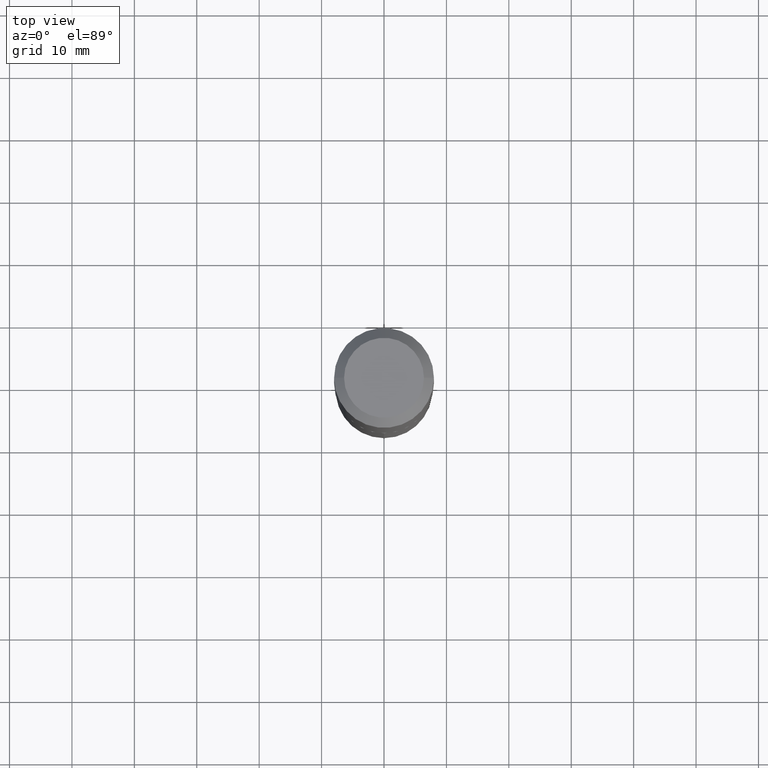
[diagram: clean part render]
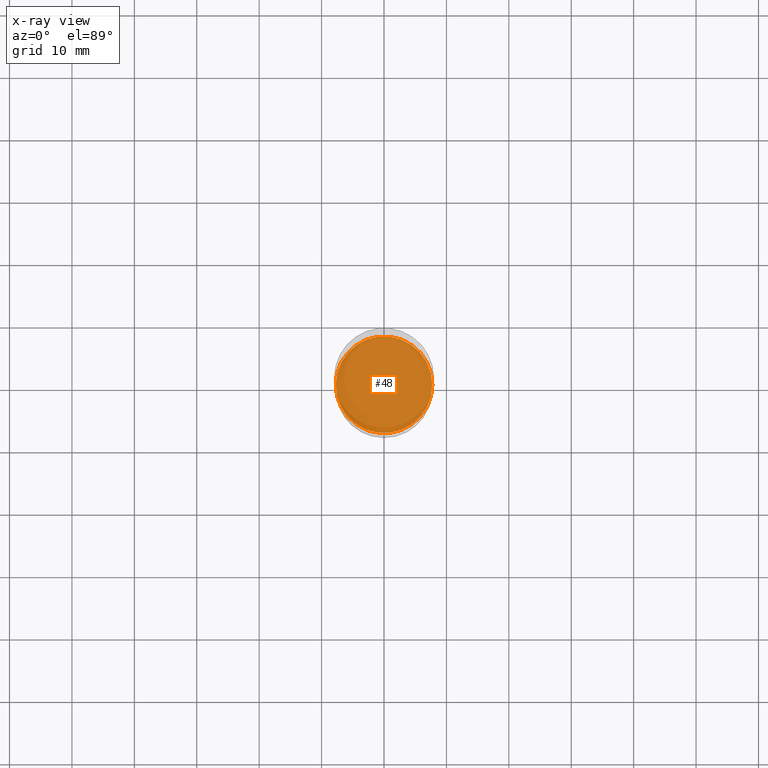
[diagram: x-ray — body ghosted, one internal face saturated and labeled with its STEP entity id]
A machine part, top view, then the same camera in x-ray: the body is ghosted and one INTERNAL B-rep face — a face not visible from any outside direction — is saturated and labeled: STEP entity #48.
In plain terms, the highlighted planar face has unit normal (-0, 0, 1).
Its self-contained STEP definition (entity closure, byte-faithful):
#10 = EDGE_CURVE ( 'NONE', #485, #196, #161, .T. ) ;
#48 = ADVANCED_FACE ( 'NONE', ( #280 ), #103, .F. ) ;
#61 = DIRECTION ( 'NONE',  ( -2.445468806185136597E-29, 3.491481338843145583E-15, 1.000000000000000000 ) ) ;
#66 = DIRECTION ( 'NONE',  ( 1.000000000000000000, -6.982962677686269866E-15, 0.000000000000000000 ) ) ;
#89 = ORIENTED_EDGE ( 'NONE', *, *, #270, .F. ) ;
#103 = PLANE ( 'NONE',  #169 ) ;
#121 = ORIENTED_EDGE ( 'NONE', *, *, #10, .F. ) ;
#135 = CARTESIAN_POINT ( 'NONE',  ( 6.306130410509609656E-29, -9.003482928474816704E-15, -2.578699999999999548 ) ) ;
#161 = CIRCLE ( 'NONE', #297, 0.3045999999999999819 ) ;
#169 = AXIS2_PLACEMENT_3D ( 'NONE', #183, #186, #356 ) ;
#183 = CARTESIAN_POINT ( 'NONE',  ( 6.306130410509609656E-29, -9.003482928474816704E-15, -2.578699999999999548 ) ) ;
#186 = DIRECTION ( 'NONE',  ( -2.438088387897960049E-29, 3.491481338843145188E-15, 1.000000000000000000 ) ) ;
#196 = VERTEX_POINT ( 'NONE', #382 ) ;
#200 = CIRCLE ( 'NONE', #432, 0.3045999999999999819 ) ;
#254 = CARTESIAN_POINT ( 'NONE',  ( -0.3045999999999999819, -6.836520528175441255E-15, -2.578699999999999548 ) ) ;
#270 = EDGE_CURVE ( 'NONE', #196, #485, #200, .T. ) ;
#280 = FACE_OUTER_BOUND ( 'NONE', #448, .T. ) ;
#297 = AXIS2_PLACEMENT_3D ( 'NONE', #403, #433, #66 ) ;
#355 = DIRECTION ( 'NONE',  ( 1.000000000000000000, -6.982962677686269866E-15, 0.000000000000000000 ) ) ;
#356 = DIRECTION ( 'NONE',  ( 1.000000000000000000, -6.982962677686265922E-15, 4.876176775795935793E-29 ) ) ;
#382 = CARTESIAN_POINT ( 'NONE',  ( 0.3045999999999999819, -1.113049336009805554E-14, -2.578699999999999548 ) ) ;
#403 = CARTESIAN_POINT ( 'NONE',  ( 6.306130410509609656E-29, -9.003482928474816704E-15, -2.578699999999999548 ) ) ;
#432 = AXIS2_PLACEMENT_3D ( 'NONE', #135, #61, #355 ) ;
#433 = DIRECTION ( 'NONE',  ( -2.445468806185136597E-29, 3.491481338843145583E-15, 1.000000000000000000 ) ) ;
#448 = EDGE_LOOP ( 'NONE', ( #89, #121 ) ) ;
#485 = VERTEX_POINT ( 'NONE', #254 ) ;